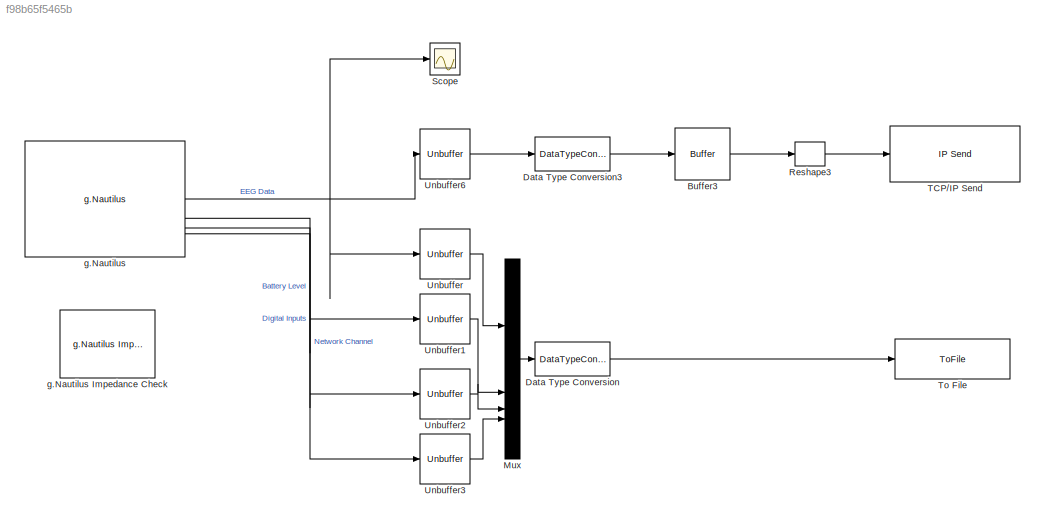
MODEL slx_f98b65f5465b
KIND model
CONFIG AbsTol = auto
CONFIG EnableMultiTasking = off
CONFIG FixedStep = auto
CONFIG MaxStep = auto
CONFIG MinStep = auto
CONFIG RelTol = 1e-3
CONFIG SampleTimeConstraint = Unconstrained
CONFIG SolverName = ode45
CONFIG StartTime = 0.0
CONFIG StopTime = inf
WORKSPACE source: mxarray member
WORKSPACE cfg_native: object (value not decoded)
WORKSPACE en_add_channels = 69
WORKSPACE host_ip = 2130706433
WORKSPACE host_port = 50223
WORKSPACE local_ip = 2130706433
WORKSPACE local_port = 50224
WORKSPACE num_en_channels = 14
WORKSPACE num_samples = 8
WORKSPACE sample_rate = 250
WORKSPACE serial_number = 'NB-2015.02.05'
BLOCK [Buffer] Buffer3
  N = 1000
  OutputFrames = off
  V = 500
BLOCK [DataTypeConversion] Data Type Conversion
  OutDataTypeStr = double
  RndMeth = Floor
  SaturateOnIntegerOverflow = off
BLOCK [DataTypeConversion] Data Type Conversion3
  OutDataTypeStr = double
  RndMeth = Floor
  SaturateOnIntegerOverflow = off
BLOCK [Mux] Mux
  DisplayOption = bar
BLOCK [Reshape] Reshape3
  OutputDimensionality = Customize
  OutputDimensions = [14000,1]
BLOCK [Scope] Scope
  Floating = off
  NumInputPorts = 1
  ScopeSpecificationString = Simulink.scopes.TimeScopeBlockCfg('CurrentConfiguration', extmgr.ConfigurationSet(extmgr.Configuration('Core','General UI',true),extmgr.Configuration('Core','Source UI',true),extmgr.Configuration('Sources','WiredSimulink',true),extmgr.Configuration('Visuals','Time Domain',true,'SerializedDisplays',{struct('MinYLimReal','-48.62554','MaxYLimReal','65.52229','YLabelReal','','MinYLimMag','0.00000','Ma...<+5084ch>
BLOCK [Reference] TCP//IP Send  REF=instrumentlib/TCP//IP Send
  SourceBlock = instrumentlib/TCP//IP Send
  SourceType = instrument.system.TCPIPSend
BLOCK [ToFile] To File
  Filename = raw_LSL_streamed_data
  MatrixName = y_n
BLOCK [Unbuffer] Unbuffer
BLOCK [Unbuffer] Unbuffer1
BLOCK [Unbuffer] Unbuffer2
BLOCK [Unbuffer] Unbuffer3
BLOCK [Unbuffer] Unbuffer6
BLOCK [Reference] g.Nautilus  REF=gNautilusLib/g.Nautilus
  Description = Operates a g.Nautilus device and provides acquired data on its outputs.
  SourceBlock = gNautilusLib/g.Nautilus
  SourceType = g.Nautilus
  Tag = g.Nautilus
BLOCK [Reference] g.Nautilus Impedance Check  REF=gNautilusTools/g.Nautilus Impedance Check
  SourceBlock = gNautilusTools/g.Nautilus Impedance Check
  SourceType = g.Nautilus Impedance Check
LINE Buffer3:1 -> Reshape3:1
LINE Data Type Conversion3:1 -> Buffer3:1
LINE Data Type Conversion:1 -> To File:1
LINE Mux:1 -> Data Type Conversion:1
LINE Reshape3:1 -> TCP//IP Send:1
LINE Unbuffer1:1 -> Mux:2
LINE Unbuffer2:1 -> Mux:3
LINE Unbuffer3:1 -> Mux:4
LINE Unbuffer6:1 -> Data Type Conversion3:1
LINE Unbuffer:1 -> Mux:1
NET g.Nautilus:1 -> Scope:1, Unbuffer6:1, Unbuffer:1
LINE g.Nautilus:2 -> Unbuffer1:1
LINE g.Nautilus:3 -> Unbuffer2:1
LINE g.Nautilus:4 -> Unbuffer3:1
note: NET lines group one-source signal fan-out (src -> all destinations, sorted); 1:1 wires keep LINE
